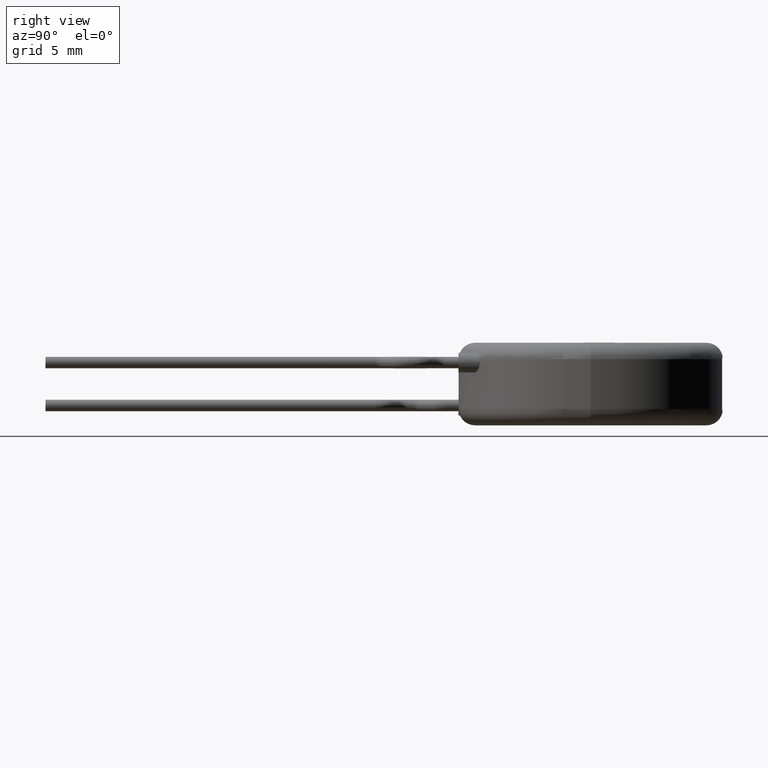
[diagram: clean part render]
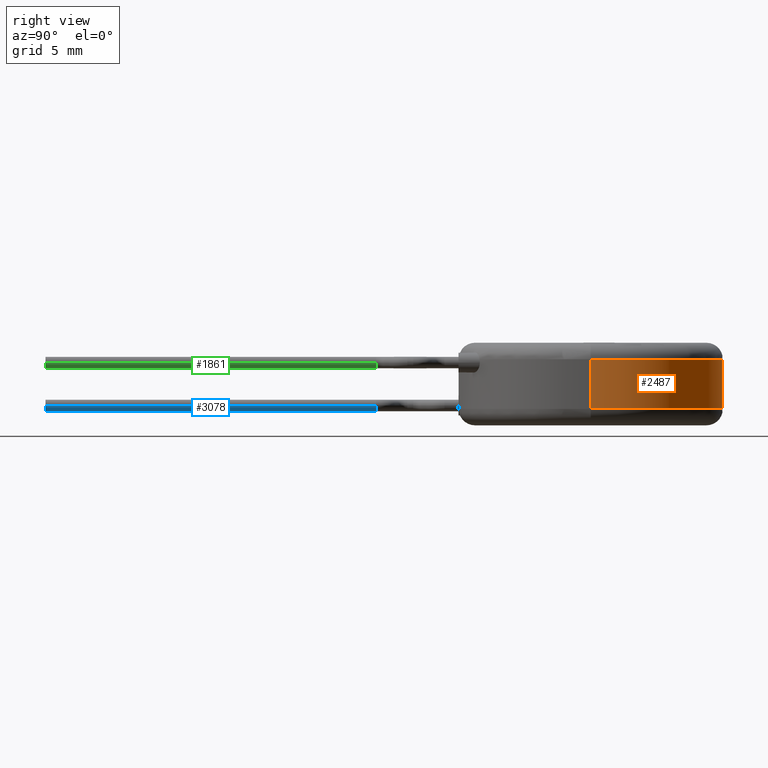
[diagram: same view with three faces highlighted in distinct colors, each labeled with its STEP entity id]
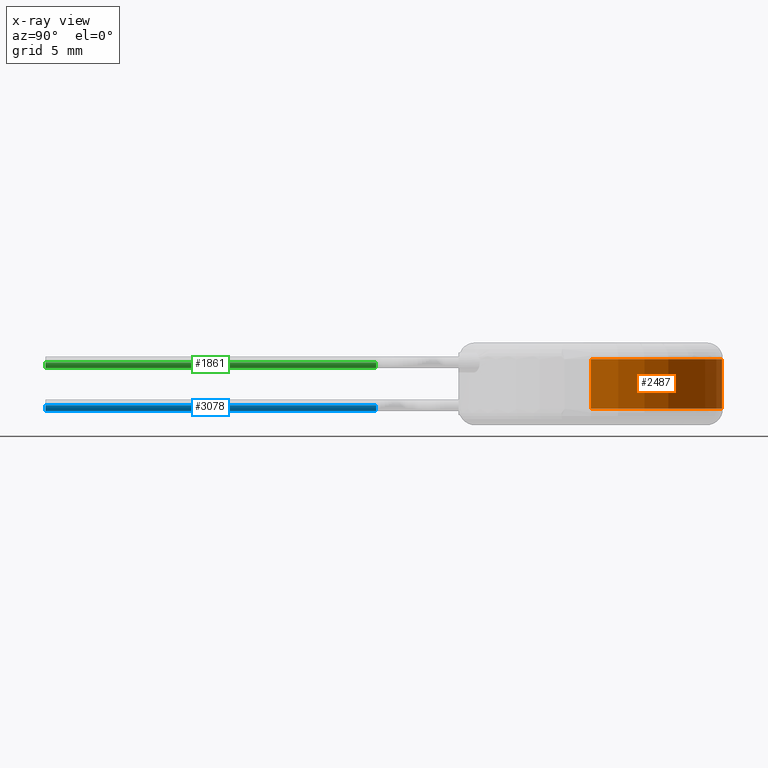
[diagram: x-ray of the same camera — body ghosted, the three highlighted faces saturated]
A machine part, right view with three faces highlighted in distinct colors.
The next image is the same camera in x-ray (body ghosted, the three faces saturated) — at least one of them is partly hidden behind the body in this view.
Their STEP definitions:

[orange] entity #2487 — the highlighted cylindrical surface (partial cylindrical patch) has radius 8 mm, axis along (-0, -0, -1).
#404 = ORIENTED_EDGE ( 'NONE', *, *, #2650, .T. ) ;
#491 = ORIENTED_EDGE ( 'NONE', *, *, #2434, .F. ) ;
#885 = VERTEX_POINT ( 'NONE', #4137 ) ;
#1066 = CARTESIAN_POINT ( 'NONE',  ( 0.000000000000000000, 0.000000000000000000, 1.000000000000000000 ) ) ;
#1271 = DIRECTION ( 'NONE',  ( -0.000000000000000000, -0.000000000000000000, -1.000000000000000000 ) ) ;
#1449 = CARTESIAN_POINT ( 'NONE',  ( 8.000000000000000000, 9.797174393178825657E-16, 5.000000000000000000 ) ) ;
#1931 = FACE_OUTER_BOUND ( 'NONE', #3350, .T. ) ;
#2015 = CARTESIAN_POINT ( 'NONE',  ( 8.000000000000000000, 9.797174393178825657E-16, 1.000000000000000000 ) ) ;
#2020 = EDGE_CURVE ( 'NONE', #2862, #885, #2335, .T. ) ;
#2189 = VECTOR ( 'NONE', #3444, 1000.000000000000000 ) ;
#2335 = CIRCLE ( 'NONE', #3378, 8.000000000000000000 ) ;
#2366 = CARTESIAN_POINT ( 'NONE',  ( 0.000000000000000000, 0.000000000000000000, 5.000000000000000000 ) ) ;
#2434 = EDGE_CURVE ( 'NONE', #2862, #3958, #3489, .T. ) ;
#2487 = ADVANCED_FACE ( 'NONE', ( #1931 ), #3640, .T. ) ;
#2563 = CARTESIAN_POINT ( 'NONE',  ( -8.000000000000000000, 0.000000000000000000, 1.000000000000000000 ) ) ;
#2650 = EDGE_CURVE ( 'NONE', #3423, #3958, #3800, .T. ) ;
#2767 = DIRECTION ( 'NONE',  ( 0.000000000000000000, 0.000000000000000000, 1.000000000000000000 ) ) ;
#2783 = DIRECTION ( 'NONE',  ( -0.000000000000000000, -0.000000000000000000, -1.000000000000000000 ) ) ;
#2862 = VERTEX_POINT ( 'NONE', #3436 ) ;
#2878 = AXIS2_PLACEMENT_3D ( 'NONE', #2366, #3083, #4338 ) ;
#3029 = ORIENTED_EDGE ( 'NONE', *, *, #2020, .T. ) ;
#3077 = ORIENTED_EDGE ( 'NONE', *, *, #3889, .T. ) ;
#3083 = DIRECTION ( 'NONE',  ( -0.000000000000000000, -0.000000000000000000, -1.000000000000000000 ) ) ;
#3307 = DIRECTION ( 'NONE',  ( 1.000000000000000000, 0.000000000000000000, 0.000000000000000000 ) ) ;
#3350 = EDGE_LOOP ( 'NONE', ( #3029, #3077, #404, #491 ) ) ;
#3375 = AXIS2_PLACEMENT_3D ( 'NONE', #1066, #2767, #3413 ) ;
#3378 = AXIS2_PLACEMENT_3D ( 'NONE', #3913, #1271, #3307 ) ;
#3413 = DIRECTION ( 'NONE',  ( 1.000000000000000000, 0.000000000000000000, 0.000000000000000000 ) ) ;
#3423 = VERTEX_POINT ( 'NONE', #2015 ) ;
#3436 = CARTESIAN_POINT ( 'NONE',  ( -8.000000000000000000, 0.000000000000000000, 4.000000000000000000 ) ) ;
#3444 = DIRECTION ( 'NONE',  ( -0.000000000000000000, -0.000000000000000000, -1.000000000000000000 ) ) ;
#3472 = VECTOR ( 'NONE', #2783, 1000.000000000000000 ) ;
#3489 = LINE ( 'NONE', #4126, #2189 ) ;
#3640 = CYLINDRICAL_SURFACE ( 'NONE', #2878, 8.000000000000000000 ) ;
#3800 = CIRCLE ( 'NONE', #3375, 8.000000000000000000 ) ;
#3889 = EDGE_CURVE ( 'NONE', #885, #3423, #4114, .T. ) ;
#3913 = CARTESIAN_POINT ( 'NONE',  ( 0.000000000000000000, 0.000000000000000000, 4.000000000000000000 ) ) ;
#3958 = VERTEX_POINT ( 'NONE', #2563 ) ;
#4114 = LINE ( 'NONE', #1449, #3472 ) ;
#4126 = CARTESIAN_POINT ( 'NONE',  ( -8.000000000000000000, 0.000000000000000000, 5.000000000000000000 ) ) ;
#4137 = CARTESIAN_POINT ( 'NONE',  ( 8.000000000000000000, 9.797174393178825657E-16, 4.000000000000000000 ) ) ;
#4338 = DIRECTION ( 'NONE',  ( -1.000000000000000000, 0.000000000000000000, 0.000000000000000000 ) ) ;

[blue] entity #3078 — the highlighted cylindrical surface (edge-blend (fillet) strip) has radius 0.35 mm, axis along (0, -1, 0).
#44 = EDGE_CURVE ( 'NONE', #102, #3071, #1116, .T. ) ;
#75 = CARTESIAN_POINT ( 'NONE',  ( -3.749999999999994671, -13.00000000000000178, 1.200000000000000178 ) ) ;
#102 = VERTEX_POINT ( 'NONE', #3025 ) ;
#237 = CARTESIAN_POINT ( 'NONE',  ( -4.099999999999996092, -13.00000000000000178, 1.200000000000000178 ) ) ;
#395 = VECTOR ( 'NONE', #605, 1000.000000000000000 ) ;
#425 = DIRECTION ( 'NONE',  ( 1.517883041479705961E-16, -1.000000000000000000, 0.000000000000000000 ) ) ;
#443 = CARTESIAN_POINT ( 'NONE',  ( -3.399999999999995914, -13.00000000000000178, 1.200000000000000178 ) ) ;
#513 = CARTESIAN_POINT ( 'NONE',  ( -3.749999999999996003, -13.00000000000000178, 1.200000000000000178 ) ) ;
#550 = VERTEX_POINT ( 'NONE', #3486 ) ;
#605 = DIRECTION ( 'NONE',  ( 1.517883041479705961E-16, -1.000000000000000000, 0.000000000000000000 ) ) ;
#640 = EDGE_CURVE ( 'NONE', #1959, #102, #2185, .T. ) ;
#671 = EDGE_CURVE ( 'NONE', #1959, #550, #4094, .T. ) ;
#823 = DIRECTION ( 'NONE',  ( -1.000000000000000000, 4.956352788505168198E-15, 0.000000000000000000 ) ) ;
#837 = AXIS2_PLACEMENT_3D ( 'NONE', #513, #1903, #3013 ) ;
#857 = FACE_OUTER_BOUND ( 'NONE', #3790, .T. ) ;
#1116 = CIRCLE ( 'NONE', #2180, 0.3499999999999996447 ) ;
#1137 = CARTESIAN_POINT ( 'NONE',  ( -3.749999999999992895, -33.00000000000000000, 1.200000000000000178 ) ) ;
#1327 = LINE ( 'NONE', #237, #395 ) ;
#1328 = CARTESIAN_POINT ( 'NONE',  ( -3.399999999999995026, -13.00000000000000355, 1.200000000000000178 ) ) ;
#1477 = DIRECTION ( 'NONE',  ( 4.884981308350689567E-15, 1.000000000000000000, 0.000000000000000000 ) ) ;
#1557 = VECTOR ( 'NONE', #425, 1000.000000000000000 ) ;
#1903 = DIRECTION ( 'NONE',  ( 1.517883041479705961E-16, -1.000000000000000000, 0.000000000000000000 ) ) ;
#1959 = VERTEX_POINT ( 'NONE', #1328 ) ;
#2180 = AXIS2_PLACEMENT_3D ( 'NONE', #1137, #4136, #3830 ) ;
#2185 = LINE ( 'NONE', #443, #1557 ) ;
#2236 = CARTESIAN_POINT ( 'NONE',  ( -4.099999999999992539, -33.00000000000000000, 1.200000000000000178 ) ) ;
#2264 = AXIS2_PLACEMENT_3D ( 'NONE', #75, #1477, #823 ) ;
#2298 = ORIENTED_EDGE ( 'NONE', *, *, #44, .T. ) ;
#2797 = ORIENTED_EDGE ( 'NONE', *, *, #640, .T. ) ;
#3013 = DIRECTION ( 'NONE',  ( 1.000000000000000000, 0.000000000000000000, 0.000000000000000000 ) ) ;
#3025 = CARTESIAN_POINT ( 'NONE',  ( -3.399999999999992806, -33.00000000000000000, 1.200000000000000178 ) ) ;
#3071 = VERTEX_POINT ( 'NONE', #2236 ) ;
#3078 = ADVANCED_FACE ( 'NONE', ( #857 ), #3574, .T. ) ;
#3129 = EDGE_CURVE ( 'NONE', #550, #3071, #1327, .T. ) ;
#3462 = ORIENTED_EDGE ( 'NONE', *, *, #3129, .F. ) ;
#3486 = CARTESIAN_POINT ( 'NONE',  ( -4.099999999999994316, -13.00000000000000000, 1.200000000000000178 ) ) ;
#3574 = CYLINDRICAL_SURFACE ( 'NONE', #837, 0.3500000000000000333 ) ;
#3790 = EDGE_LOOP ( 'NONE', ( #3462, #4286, #2797, #2298 ) ) ;
#3830 = DIRECTION ( 'NONE',  ( -1.000000000000000000, 0.000000000000000000, 0.000000000000000000 ) ) ;
#4094 = CIRCLE ( 'NONE', #2264, 0.3499999999999996447 ) ;
#4136 = DIRECTION ( 'NONE',  ( 4.884981308350689567E-15, 1.000000000000000000, 0.000000000000000000 ) ) ;
#4286 = ORIENTED_EDGE ( 'NONE', *, *, #671, .F. ) ;

[green] entity #1861 — the highlighted cylindrical surface (edge-blend (fillet) strip) has radius 0.35 mm, axis along (0, -1, 0).
#6 = LINE ( 'NONE', #2373, #2121 ) ;
#181 = AXIS2_PLACEMENT_3D ( 'NONE', #3892, #3911, #494 ) ;
#205 = DIRECTION ( 'NONE',  ( -1.665334536937735304E-16, -1.000000000000000000, 0.000000000000000000 ) ) ;
#281 = ORIENTED_EDGE ( 'NONE', *, *, #3629, .T. ) ;
#494 = DIRECTION ( 'NONE',  ( 1.000000000000000000, 0.000000000000000000, 0.000000000000000000 ) ) ;
#545 = ORIENTED_EDGE ( 'NONE', *, *, #3064, .T. ) ;
#607 = DIRECTION ( 'NONE',  ( 1.517883041479705961E-16, -1.000000000000000000, 0.000000000000000000 ) ) ;
#825 = CARTESIAN_POINT ( 'NONE',  ( 3.400000000000017675, -33.00000000000000000, 3.799999999999999822 ) ) ;
#1123 = CARTESIAN_POINT ( 'NONE',  ( 4.100000000000019185, -33.00000000000000000, 3.799999999999999822 ) ) ;
#1170 = DIRECTION ( 'NONE',  ( 1.517883041479705961E-16, -1.000000000000000000, 0.000000000000000000 ) ) ;
#1235 = CYLINDRICAL_SURFACE ( 'NONE', #1356, 0.3500000000000013656 ) ;
#1252 = CARTESIAN_POINT ( 'NONE',  ( 3.750000000000018652, -33.00000000000000000, 3.799999999999999822 ) ) ;
#1291 = FACE_OUTER_BOUND ( 'NONE', #2666, .T. ) ;
#1298 = VERTEX_POINT ( 'NONE', #825 ) ;
#1309 = VERTEX_POINT ( 'NONE', #2992 ) ;
#1356 = AXIS2_PLACEMENT_3D ( 'NONE', #3226, #1170, #3153 ) ;
#1616 = ORIENTED_EDGE ( 'NONE', *, *, #1864, .F. ) ;
#1861 = ADVANCED_FACE ( 'NONE', ( #1291 ), #1235, .T. ) ;
#1864 = EDGE_CURVE ( 'NONE', #3303, #1298, #3636, .T. ) ;
#2121 = VECTOR ( 'NONE', #4361, 1000.000000000000000 ) ;
#2373 = CARTESIAN_POINT ( 'NONE',  ( 4.100000000000016520, -12.99999999999999822, 3.799999999999999822 ) ) ;
#2482 = EDGE_CURVE ( 'NONE', #1298, #2968, #3808, .T. ) ;
#2660 = CARTESIAN_POINT ( 'NONE',  ( 3.400000000000014566, -12.99999999999999822, 3.799999999999999822 ) ) ;
#2666 = EDGE_LOOP ( 'NONE', ( #1616, #545, #281, #3112 ) ) ;
#2937 = CARTESIAN_POINT ( 'NONE',  ( 3.400000000000014122, -13.00000000000000000, 3.799999999999999822 ) ) ;
#2968 = VERTEX_POINT ( 'NONE', #1123 ) ;
#2992 = CARTESIAN_POINT ( 'NONE',  ( 4.100000000000015632, -13.00000000000000000, 3.799999999999999822 ) ) ;
#3064 = EDGE_CURVE ( 'NONE', #3303, #1309, #4221, .T. ) ;
#3112 = ORIENTED_EDGE ( 'NONE', *, *, #2482, .F. ) ;
#3153 = DIRECTION ( 'NONE',  ( 1.000000000000000000, 0.000000000000000000, 0.000000000000000000 ) ) ;
#3215 = DIRECTION ( 'NONE',  ( 1.000000000000000000, 0.000000000000000000, 0.000000000000000000 ) ) ;
#3226 = CARTESIAN_POINT ( 'NONE',  ( 3.750000000000015543, -12.99999999999999822, 3.799999999999999822 ) ) ;
#3232 = AXIS2_PLACEMENT_3D ( 'NONE', #1252, #205, #3215 ) ;
#3303 = VERTEX_POINT ( 'NONE', #2937 ) ;
#3629 = EDGE_CURVE ( 'NONE', #1309, #2968, #6, .T. ) ;
#3636 = LINE ( 'NONE', #2660, #3949 ) ;
#3808 = CIRCLE ( 'NONE', #3232, 0.3500000000000009215 ) ;
#3892 = CARTESIAN_POINT ( 'NONE',  ( 3.750000000000015099, -13.00000000000000000, 3.799999999999999822 ) ) ;
#3911 = DIRECTION ( 'NONE',  ( -1.665334536937735304E-16, -1.000000000000000000, 0.000000000000000000 ) ) ;
#3949 = VECTOR ( 'NONE', #607, 1000.000000000000000 ) ;
#4221 = CIRCLE ( 'NONE', #181, 0.3500000000000009215 ) ;
#4361 = DIRECTION ( 'NONE',  ( 1.517883041479705961E-16, -1.000000000000000000, 0.000000000000000000 ) ) ;